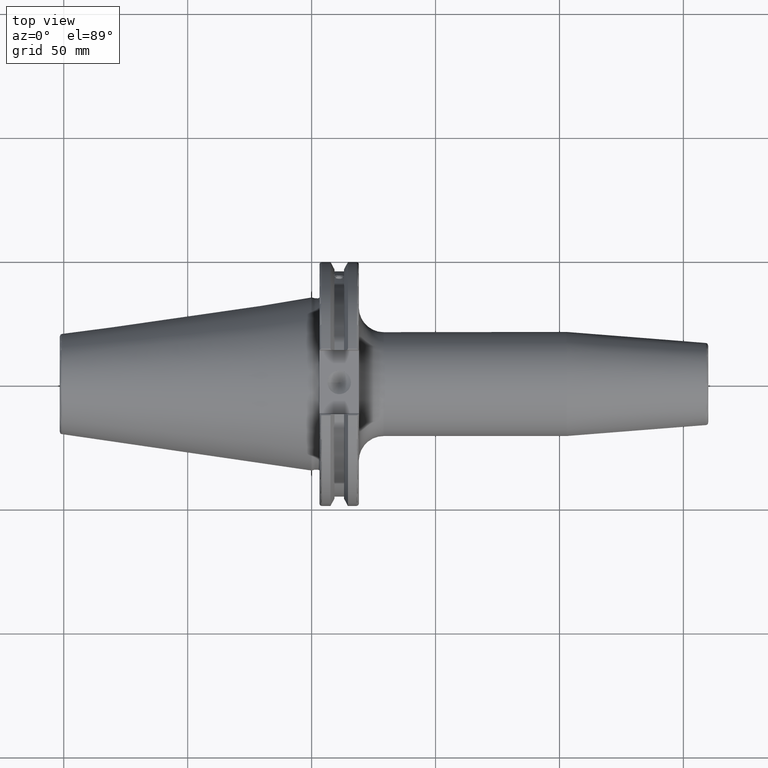
[diagram: clean part render]
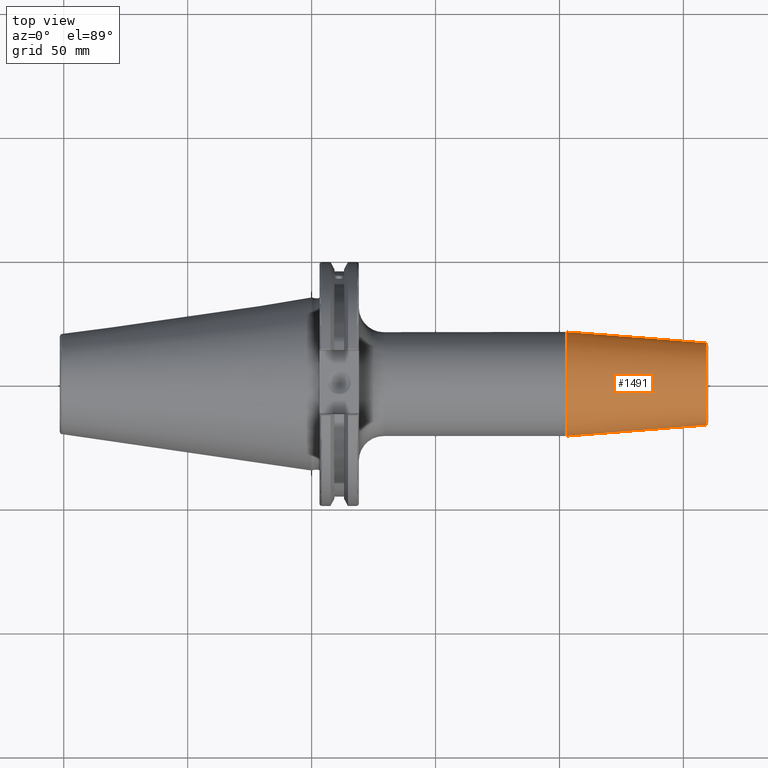
[diagram: same view with one face highlighted and labeled with its STEP entity id]
A machine part, top view. The second image highlights one B-rep face of the part: STEP entity #1491.
In plain terms, the highlighted conical surface has half-angle 4.5 deg.
Its self-contained STEP definition (entity closure, byte-faithful):
#177=FACE_OUTER_BOUND('',#268,.T.);
#268=EDGE_LOOP('',(#1046,#1047,#1048,#1049,#1050));
#372=LINE('',#2236,#466);
#466=VECTOR('',#1813,18.75);
#564=CIRCLE('',#1613,16.5725268420749);
#565=CIRCLE('',#1614,16.5725268420749);
#566=CIRCLE('',#1616,21.);
#642=VERTEX_POINT('',#2229);
#643=VERTEX_POINT('',#2231);
#644=VERTEX_POINT('',#2235);
#801=EDGE_CURVE('',#642,#643,#564,.T.);
#802=EDGE_CURVE('',#643,#642,#565,.T.);
#803=EDGE_CURVE('',#643,#644,#372,.T.);
#804=EDGE_CURVE('',#644,#644,#566,.T.);
#1046=ORIENTED_EDGE('',*,*,#802,.F.);
#1047=ORIENTED_EDGE('',*,*,#803,.T.);
#1048=ORIENTED_EDGE('',*,*,#804,.T.);
#1049=ORIENTED_EDGE('',*,*,#803,.F.);
#1050=ORIENTED_EDGE('',*,*,#801,.F.);
#1471=CONICAL_SURFACE('',#1615,18.75,0.0785398163397452);
#1491=ADVANCED_FACE('',(#177),#1471,.T.);
#1613=AXIS2_PLACEMENT_3D('',#2232,#1807,#1808);
#1614=AXIS2_PLACEMENT_3D('',#2233,#1809,#1810);
#1615=AXIS2_PLACEMENT_3D('',#2234,#1811,#1812);
#1616=AXIS2_PLACEMENT_3D('',#2237,#1814,#1815);
#1807=DIRECTION('center_axis',(1.,0.,0.));
#1808=DIRECTION('ref_axis',(0.,-1.,3.06161699786838E-17));
#1809=DIRECTION('center_axis',(1.,0.,0.));
#1810=DIRECTION('ref_axis',(0.,-1.,3.06161699786838E-17));
#1811=DIRECTION('center_axis',(-1.,0.,0.));
#1812=DIRECTION('ref_axis',(0.,1.,0.));
#1813=DIRECTION('',(-0.996917333733128,-0.0784590957278453,-9.60846804471016E-18));
#1814=DIRECTION('center_axis',(1.,0.,0.));
#1815=DIRECTION('ref_axis',(0.,0.,-1.));
#2229=CARTESIAN_POINT('',(159.078459095728,-2.02954919509306E-15,16.5725268420749));
#2231=CARTESIAN_POINT('',(159.078459095728,-16.5725268420749,-2.02954919509306E-15));
#2232=CARTESIAN_POINT('Origin',(159.078459095728,0.,-2.53693649386633E-15));
#2233=CARTESIAN_POINT('Origin',(159.078459095728,0.,-2.53693649386633E-15));
#2234=CARTESIAN_POINT('Origin',(131.411039343607,0.,0.));
#2235=CARTESIAN_POINT('',(102.822078687214,-21.,-2.57175827820944E-15));
#2236=CARTESIAN_POINT('',(131.411039343607,-18.75,-2.29621274840129E-15));
#2237=CARTESIAN_POINT('Origin',(102.822078687214,0.,0.));